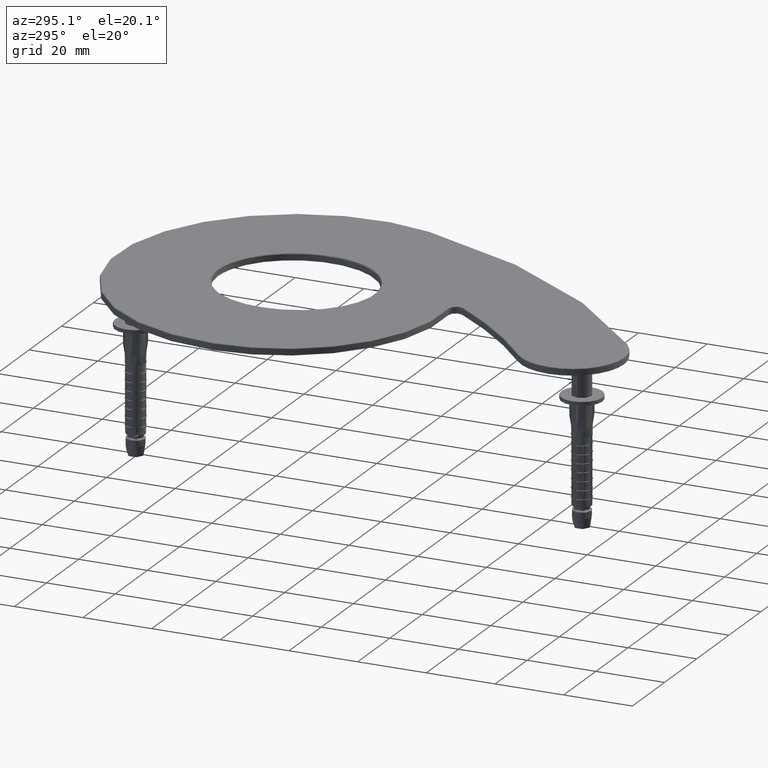
[diagram: clean part render]
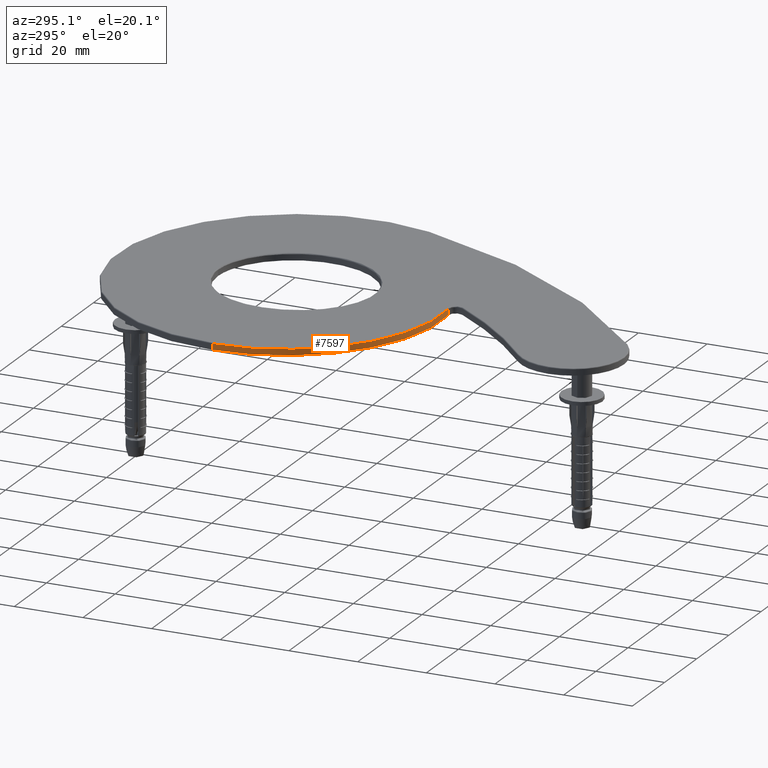
[diagram: same view with one face highlighted and labeled with its STEP entity id]
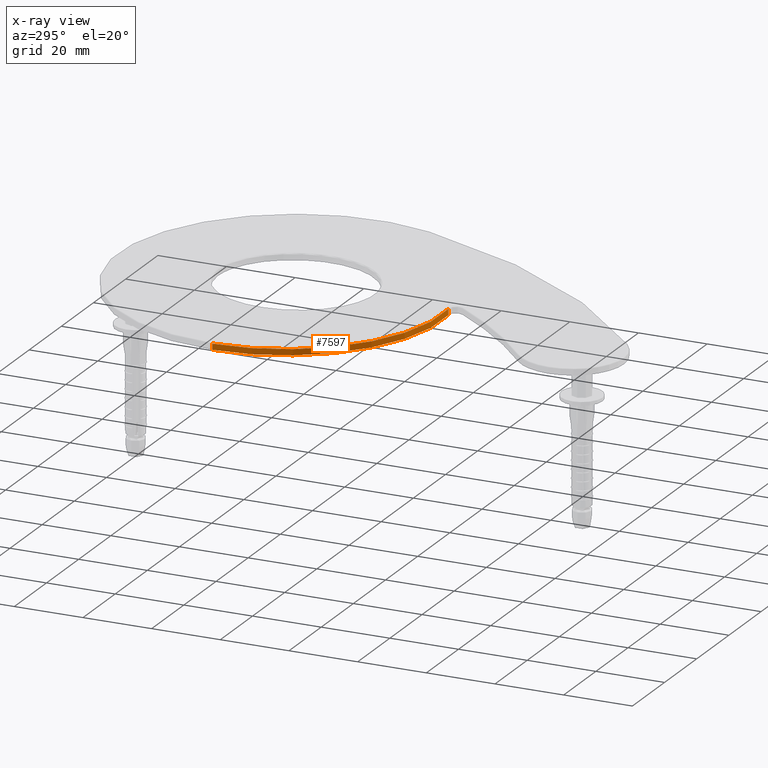
[diagram: x-ray of the same camera — body ghosted, the highlighted face saturated]
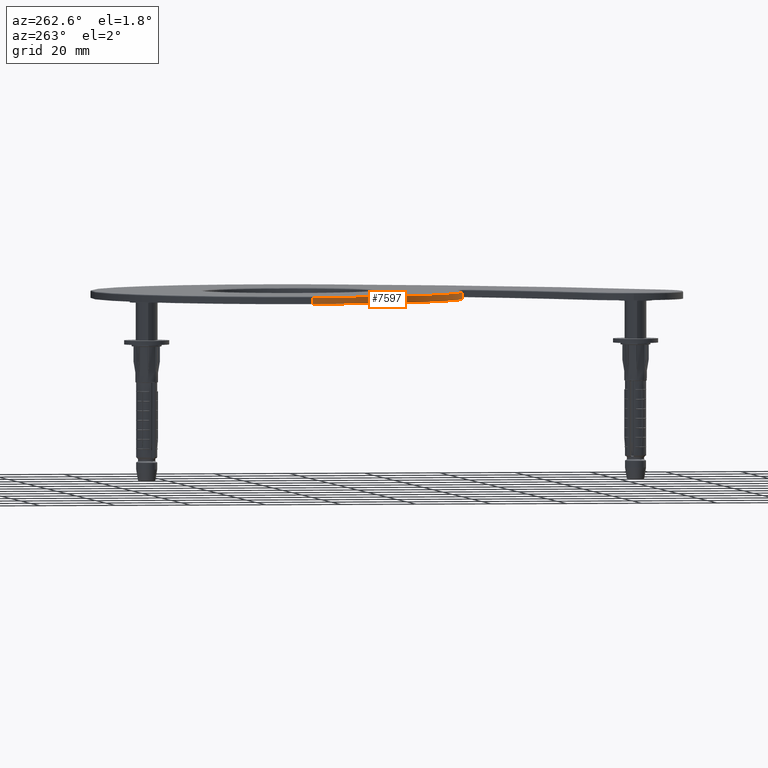
[diagram: same view with one face highlighted and labeled with its STEP entity id]
A machine part, auxiliary view. The second image highlights one B-rep face of the part: STEP entity #7597.
The next image is the same camera in x-ray: the body ghosted, the highlighted face saturated — about 0% of this face is hidden behind the body in this view.
A second angle (auxiliary view) of the same face is appended — the face is thin or edge-on in the first view.
In plain terms, the highlighted cylindrical surface (partial cylindrical patch) has radius 45.3149 mm, axis along (-0, -0, -1).
Its self-contained STEP definition (entity closure, byte-faithful):
#192 = CARTESIAN_POINT ( 'NONE',  ( 26.04909383457818706, 52.63738338989701049, 2.000000000000000000 ) ) ;
#396 = AXIS2_PLACEMENT_3D ( 'NONE', #23645, #5376, #26737 ) ;
#1507 = VERTEX_POINT ( 'NONE', #5157 ) ;
#1693 = DIRECTION ( 'NONE',  ( -1.000000000000000000, 0.000000000000000000, 0.000000000000000000 ) ) ;
#3152 = DIRECTION ( 'NONE',  ( -0.000000000000000000, -0.000000000000000000, -1.000000000000000000 ) ) ;
#3385 = CARTESIAN_POINT ( 'NONE',  ( -24.51400880514272629, 97.64738338989700139, 1.750000000000000000 ) ) ;
#4202 = VECTOR ( 'NONE', #3152, 1000.000000000000000 ) ;
#4920 = DIRECTION ( 'NONE',  ( -0.000000000000000000, -0.000000000000000000, -1.000000000000000000 ) ) ;
#5157 = CARTESIAN_POINT ( 'NONE',  ( 26.04909383457818706, 52.63738338989701049, 0.000000000000000000 ) ) ;
#5376 = DIRECTION ( 'NONE',  ( 0.000000000000000000, 0.000000000000000000, 1.000000000000000000 ) ) ;
#6260 = AXIS2_PLACEMENT_3D ( 'NONE', #25672, #17009, #16871 ) ;
#6343 = VERTEX_POINT ( 'NONE', #19393 ) ;
#7597 = ADVANCED_FACE ( 'NONE', ( #32243 ), #33694, .T. ) ;
#7715 = DIRECTION ( 'NONE',  ( -0.000000000000000000, -0.000000000000000000, -1.000000000000000000 ) ) ;
#9653 = EDGE_CURVE ( 'NONE', #16934, #1507, #37796, .T. ) ;
#10548 = VERTEX_POINT ( 'NONE', #3385 ) ;
#11276 = CARTESIAN_POINT ( 'NONE',  ( 20.80092648677360856, 97.64738338989700139, 2.000000000000000000 ) ) ;
#14195 = CIRCLE ( 'NONE', #6260, 45.31493529191630643 ) ;
#16415 = ORIENTED_EDGE ( 'NONE', *, *, #9653, .T. ) ;
#16871 = DIRECTION ( 'NONE',  ( -1.000000000000000000, 0.000000000000000000, 0.000000000000000000 ) ) ;
#16934 = VERTEX_POINT ( 'NONE', #34223 ) ;
#17009 = DIRECTION ( 'NONE',  ( -0.000000000000000000, -0.000000000000000000, -1.000000000000000000 ) ) ;
#19011 = LINE ( 'NONE', #192, #4202 ) ;
#19393 = CARTESIAN_POINT ( 'NONE',  ( 26.04909383457818706, 52.63738338989701049, 1.750000000000000000 ) ) ;
#19860 = CARTESIAN_POINT ( 'NONE',  ( -24.51400880514272629, 97.64738338989700139, 2.000000000000000000 ) ) ;
#23645 = CARTESIAN_POINT ( 'NONE',  ( 20.80092648677360856, 97.64738338989700139, 0.000000000000000000 ) ) ;
#23806 = ORIENTED_EDGE ( 'NONE', *, *, #38247, .T. ) ;
#25672 = CARTESIAN_POINT ( 'NONE',  ( 20.80092648677360856, 97.64738338989700139, 1.750000000000000000 ) ) ;
#26737 = DIRECTION ( 'NONE',  ( -1.000000000000000000, 0.000000000000000000, 0.000000000000000000 ) ) ;
#27292 = AXIS2_PLACEMENT_3D ( 'NONE', #11276, #4920, #1693 ) ;
#29370 = ORIENTED_EDGE ( 'NONE', *, *, #38766, .F. ) ;
#32243 = FACE_OUTER_BOUND ( 'NONE', #39438, .T. ) ;
#33694 = CYLINDRICAL_SURFACE ( 'NONE', #27292, 45.31493529191630643 ) ;
#34223 = CARTESIAN_POINT ( 'NONE',  ( -24.51400880514272629, 97.64738338989700139, 0.000000000000000000 ) ) ;
#34239 = LINE ( 'NONE', #19860, #34726 ) ;
#34726 = VECTOR ( 'NONE', #7715, 1000.000000000000000 ) ;
#36230 = ORIENTED_EDGE ( 'NONE', *, *, #39018, .T. ) ;
#37796 = CIRCLE ( 'NONE', #396, 45.31493529191630643 ) ;
#38247 = EDGE_CURVE ( 'NONE', #10548, #16934, #34239, .T. ) ;
#38766 = EDGE_CURVE ( 'NONE', #6343, #1507, #19011, .T. ) ;
#39018 = EDGE_CURVE ( 'NONE', #6343, #10548, #14195, .T. ) ;
#39438 = EDGE_LOOP ( 'NONE', ( #29370, #36230, #23806, #16415 ) ) ;